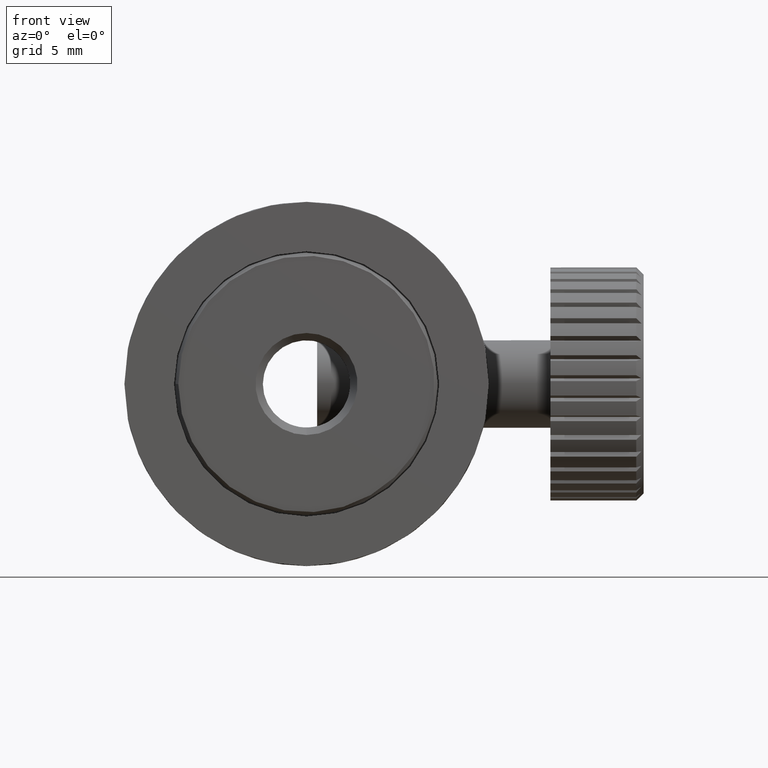
[diagram: clean part render]
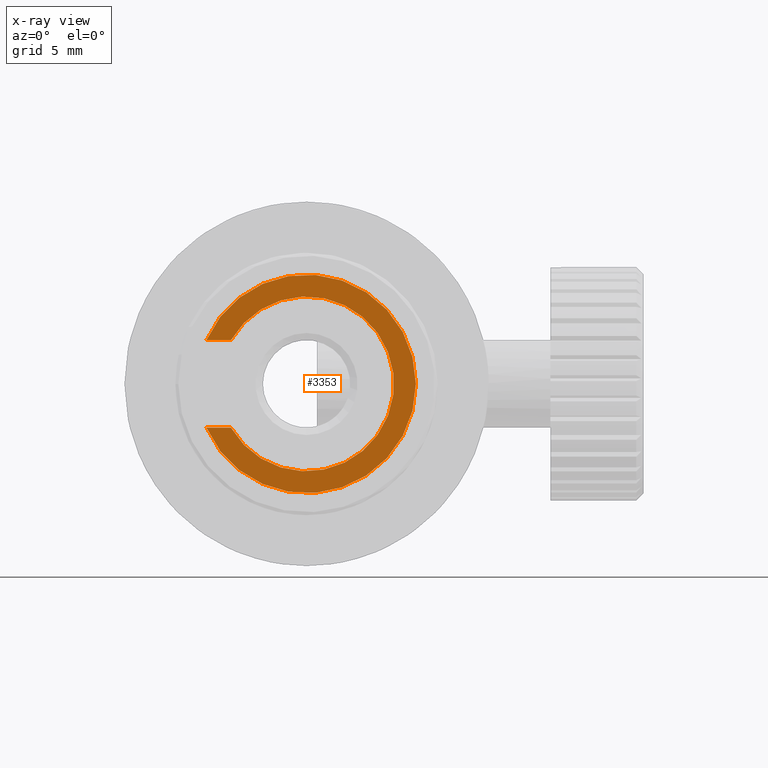
[diagram: x-ray — body ghosted, one internal face saturated and labeled with its STEP entity id]
A machine part, front view, then the same camera in x-ray: the body is ghosted and one INTERNAL B-rep face — a face not visible from any outside direction — is saturated and labeled: STEP entity #3353.
In plain terms, the highlighted planar face has unit normal (0, -1, 0).
Its self-contained STEP definition (entity closure, byte-faithful):
#359 = DIRECTION ( 'NONE',  ( 0.000000000000000000, -1.000000000000000000, 0.000000000000000000 ) ) ;
#420 = EDGE_CURVE ( 'NONE', #4587, #3680, #989, .T. ) ;
#770 = EDGE_CURVE ( 'NONE', #1451, #3352, #4629, .T. ) ;
#773 = DIRECTION ( 'NONE',  ( 0.000000000000000000, -0.000000000000000000, -1.000000000000000000 ) ) ;
#842 = ORIENTED_EDGE ( 'NONE', *, *, #770, .T. ) ;
#982 = AXIS2_PLACEMENT_3D ( 'NONE', #4866, #4109, #3323 ) ;
#989 = CIRCLE ( 'NONE', #982, 7.499999999999999112 ) ;
#1049 = EDGE_LOOP ( 'NONE', ( #842, #1115, #2314, #1765 ) ) ;
#1115 = ORIENTED_EDGE ( 'NONE', *, *, #4178, .T. ) ;
#1351 = CARTESIAN_POINT ( 'NONE',  ( -9.872190561577488310, 0.1863879403901629872, 1.868345722814584997 ) ) ;
#1451 = VERTEX_POINT ( 'NONE', #5072 ) ;
#1530 = DIRECTION ( 'NONE',  ( 0.000000000000000000, 1.000000000000000000, 0.000000000000000000 ) ) ;
#1765 = ORIENTED_EDGE ( 'NONE', *, *, #2847, .T. ) ;
#1960 = CARTESIAN_POINT ( 'NONE',  ( -8.194479441850363699, 0.1863879403901629872, -4.131654277185412560 ) ) ;
#2262 = CARTESIAN_POINT ( 'NONE',  ( -2.998327019143730343, 0.1863879403901629872, 1.868345722814584997 ) ) ;
#2299 = CARTESIAN_POINT ( 'NONE',  ( -9.872190561577488310, 0.1863879403901629872, -4.131654277185413449 ) ) ;
#2314 = ORIENTED_EDGE ( 'NONE', *, *, #420, .T. ) ;
#2749 = VECTOR ( 'NONE', #2795, 1000.000000000000000 ) ;
#2795 = DIRECTION ( 'NONE',  ( -1.000000000000000000, 0.000000000000000000, -0.000000000000000000 ) ) ;
#2847 = EDGE_CURVE ( 'NONE', #3680, #1451, #4996, .T. ) ;
#3022 = DIRECTION ( 'NONE',  ( 1.000000000000000000, 0.000000000000000000, 0.000000000000000000 ) ) ;
#3323 = DIRECTION ( 'NONE',  ( 0.000000000000000000, 0.000000000000000000, -1.000000000000000000 ) ) ;
#3352 = VERTEX_POINT ( 'NONE', #1960 ) ;
#3353 = ADVANCED_FACE ( 'NONE', ( #4257 ), #4305, .T. ) ;
#3680 = VERTEX_POINT ( 'NONE', #1351 ) ;
#3893 = DIRECTION ( 'NONE',  ( 0.000000000000000000, 0.000000000000000000, 1.000000000000000000 ) ) ;
#3913 = CARTESIAN_POINT ( 'NONE',  ( -2.998327019143730343, 0.1863879403901629872, -1.131654277185413671 ) ) ;
#3918 = CARTESIAN_POINT ( 'NONE',  ( -2.998327019143730343, 0.1863879403901629872, -1.131654277185413671 ) ) ;
#3941 = AXIS2_PLACEMENT_3D ( 'NONE', #3913, #359, #773 ) ;
#4017 = CARTESIAN_POINT ( 'NONE',  ( -10.64832701914373025, 0.1863879403901629872, -4.131654277185413449 ) ) ;
#4043 = LINE ( 'NONE', #4017, #2749 ) ;
#4109 = DIRECTION ( 'NONE',  ( -0.000000000000000000, -1.000000000000000000, -0.000000000000000000 ) ) ;
#4178 = EDGE_CURVE ( 'NONE', #3352, #4587, #4043, .T. ) ;
#4257 = FACE_OUTER_BOUND ( 'NONE', #1049, .T. ) ;
#4305 = PLANE ( 'NONE',  #3941 ) ;
#4587 = VERTEX_POINT ( 'NONE', #2299 ) ;
#4629 = CIRCLE ( 'NONE', #5127, 6.000000000000000000 ) ;
#4866 = CARTESIAN_POINT ( 'NONE',  ( -2.998327019143730343, 0.1863879403901629872, -1.131654277185413671 ) ) ;
#4996 = LINE ( 'NONE', #2262, #5109 ) ;
#5072 = CARTESIAN_POINT ( 'NONE',  ( -8.194479441850365475, 0.1863879403901629872, 1.868345722814583665 ) ) ;
#5109 = VECTOR ( 'NONE', #3022, 1000.000000000000000 ) ;
#5127 = AXIS2_PLACEMENT_3D ( 'NONE', #3918, #1530, #3893 ) ;